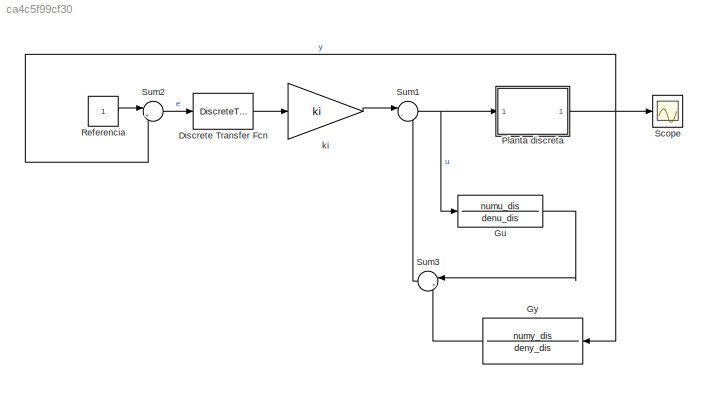
MODEL slx_ca4c5f99cf30
KIND model
CONFIG AbsTol = auto
CONFIG FixedStep = auto
CONFIG MaxStep = auto
CONFIG MinStep = auto
CONFIG RelTol = 1e-3
CONFIG SampleTimeConstraint = Unconstrained
CONFIG Solver = VariableStepAuto
CONFIG SolverMode = Auto
CONFIG SolverName = VariableStepAuto
CONFIG StartTime = 0.0
CONFIG StopTime = 10
BLOCK [DiscreteTransferFcn] Discrete Transfer Fcn
  Denominator = [1 -1]
  InputPortMap = u0
  Numerator = [1 0]
  Ports = [1, 1]
  SampleTime = tm
BLOCK [TransferFcn] Gu
  Denominator = denu_dis
  Numerator = numu_dis
BLOCK [TransferFcn] Gy
  Denominator = deny_dis
  Numerator = numy_dis
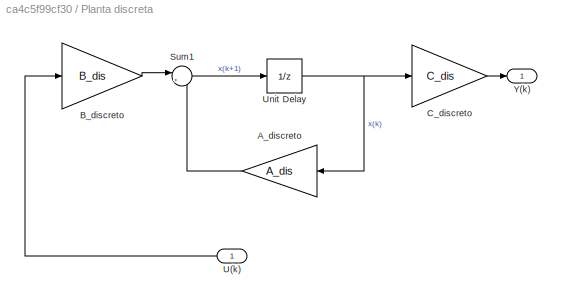
BLOCK [SubSystem] Planta discreta
  Ports = [1, 1]
  RequestExecContextInheritance = off
  Variant = off
BLOCK [Gain] Planta discreta/A_discreto
  Gain = A_dis
  Multiplication = Matrix(K*u) (u vector)
  OutDataTypeStr = Inherit: Inherit via internal rule
  ParamDataTypeStr = Inherit: Inherit via internal rule
  SaturateOnIntegerOverflow = off
BLOCK [Gain] Planta discreta/B_discreto
  Gain = B_dis
  Multiplication = Matrix(K*u) (u vector)
  OutDataTypeStr = Inherit: Inherit via internal rule
  ParamDataTypeStr = Inherit: Inherit via internal rule
  SaturateOnIntegerOverflow = off
BLOCK [Gain] Planta discreta/C_discreto
  Gain = C_dis
  Multiplication = Matrix(K*u) (u vector)
  OutDataTypeStr = Inherit: Inherit via internal rule
  ParamDataTypeStr = Inherit: Inherit via internal rule
  SaturateOnIntegerOverflow = off
BLOCK [Sum] Planta discreta/Sum1
  IconShape = round
  InputSameDT = off
  Inputs = |++
  OutDataTypeStr = Inherit: Inherit via internal rule
  Ports = [2, 1]
  SaturateOnIntegerOverflow = off
BLOCK [Inport] Planta discreta/U(k)
  IconDisplay = Port number
BLOCK [UnitDelay] Planta discreta/Unit Delay
  InitialCondition = [1;1]
  InputProcessing = Elements as channels (sample based)
  SampleTime = tm
BLOCK [Outport] Planta discreta/Y(k)
  IconDisplay = Port number
BLOCK [Constant] Referencia
BLOCK [Scope] Scope
  Ports = [1]
  ScopeSpecificationString = Simulink.scopes.TimeScopeBlockCfg('CurrentConfiguration', extmgr.ConfigurationSet(extmgr.Configuration('Core','General UI',true),extmgr.Configuration('Core','Source UI',true),extmgr.Configuration('Sources','WiredSimulink',true),extmgr.Configuration('Visuals','Time Domain',true,'SerializedDisplays',{struct('MinYLimReal','-2482514041114536800000000000000000000000000000000000000.00000','MaxYLimReal',...<+1807ch>
BLOCK [Sum] Sum1
  IconShape = round
  InputSameDT = off
  Inputs = |--
  OutDataTypeStr = Inherit: Inherit via internal rule
  Ports = [2, 1]
  SaturateOnIntegerOverflow = off
BLOCK [Sum] Sum2
  IconShape = round
  InputSameDT = off
  Inputs = |+-
  OutDataTypeStr = Inherit: Inherit via internal rule
  Ports = [2, 1]
  SaturateOnIntegerOverflow = off
BLOCK [Sum] Sum3
  IconShape = round
  InputSameDT = off
  Inputs = |++
  OutDataTypeStr = Inherit: Inherit via internal rule
  Ports = [2, 1]
  SaturateOnIntegerOverflow = off
BLOCK [Gain] ki
  Gain = ki
  Multiplication = Matrix(K*u) (u vector)
  OutDataTypeStr = Inherit: Inherit via internal rule
  ParamDataTypeStr = Inherit: Inherit via internal rule
  SaturateOnIntegerOverflow = off
LINE Discrete Transfer Fcn:1 -> ki:1
LINE Gu:1 -> Sum3:1
LINE Gy:1 -> Sum3:2
LINE Planta discreta/A_discreto:1 -> Planta discreta/Sum1:2
LINE Planta discreta/B_discreto:1 -> Planta discreta/Sum1:1
LINE Planta discreta/C_discreto:1 -> Planta discreta/Y(k):1
LINE Planta discreta/Sum1:1 -> Planta discreta/Unit Delay:1
LINE Planta discreta/U(k):1 -> Planta discreta/B_discreto:1
NET Planta discreta/Unit Delay:1 -> Planta discreta/A_discreto:1, Planta discreta/C_discreto:1
NET Planta discreta:1 -> Gy:1, Scope:1, Sum2:2
LINE Referencia:1 -> Sum2:1
NET Sum1:1 -> Gu:1, Planta discreta:1
LINE Sum2:1 -> Discrete Transfer Fcn:1
LINE Sum3:1 -> Sum1:2
LINE ki:1 -> Sum1:1
note: NET lines group one-source signal fan-out (src -> all destinations, sorted); 1:1 wires keep LINE
